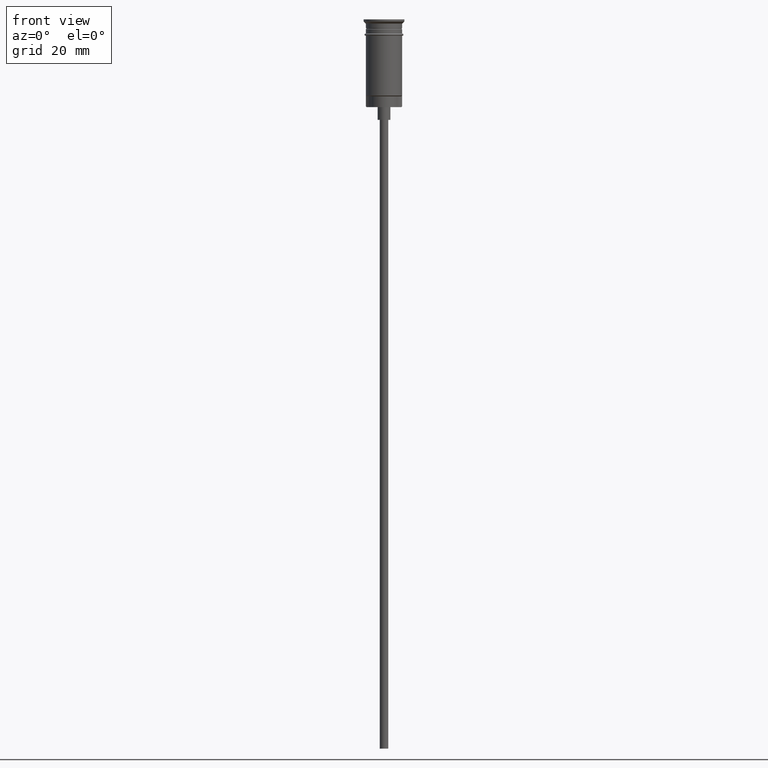
[diagram: clean part render]
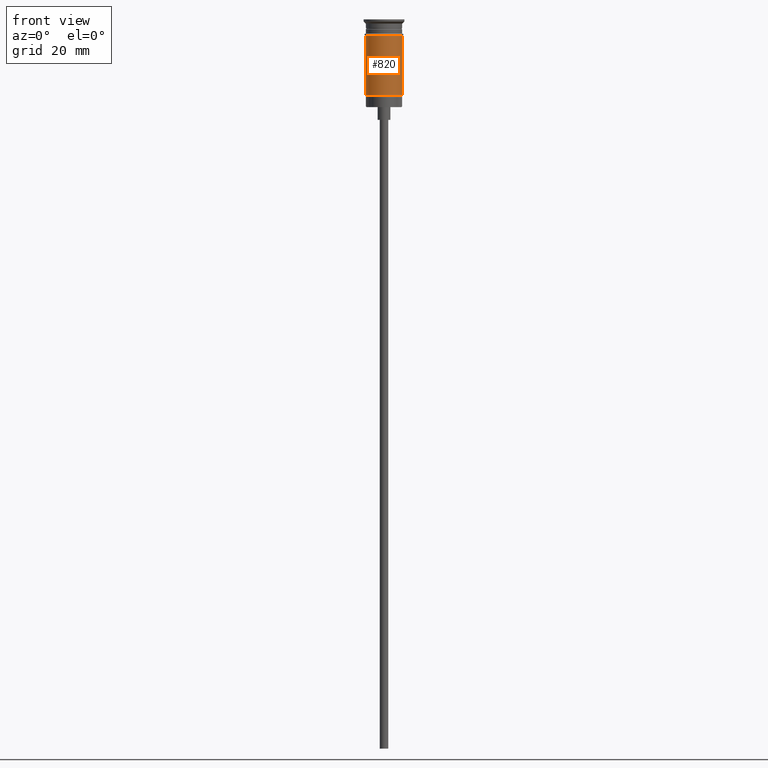
[diagram: same view with one face highlighted and labeled with its STEP entity id]
A machine part, front view. The second image highlights one B-rep face of the part: STEP entity #820.
In plain terms, the highlighted cylindrical surface (edge-blend (fillet) strip) has radius 4.25 mm, axis along (-0, -0, 1).
Its self-contained STEP definition (entity closure, byte-faithful):
#90 = AXIS2_PLACEMENT_3D ( 'NONE', #594, #586, #332 ) ;
#122 = ORIENTED_EDGE ( 'NONE', *, *, #1290, .T. ) ;
#182 = DIRECTION ( 'NONE',  ( 1.000000000000000000, 0.000000000000000000, 0.000000000000000000 ) ) ;
#193 = EDGE_CURVE ( 'NONE', #450, #294, #837, .T. ) ;
#200 = DIRECTION ( 'NONE',  ( -1.000000000000000000, 0.000000000000000000, 0.000000000000000000 ) ) ;
#238 = ORIENTED_EDGE ( 'NONE', *, *, #1216, .T. ) ;
#275 = VECTOR ( 'NONE', #791, 1000.000000000000000 ) ;
#290 = CARTESIAN_POINT ( 'NONE',  ( 4.249999999999996447, 0.000000000000000000, 0.000000000000000000 ) ) ;
#294 = VERTEX_POINT ( 'NONE', #860 ) ;
#306 = DIRECTION ( 'NONE',  ( -0.000000000000000000, -0.000000000000000000, 1.000000000000000000 ) ) ;
#332 = DIRECTION ( 'NONE',  ( 1.000000000000000000, 0.000000000000000000, 0.000000000000000000 ) ) ;
#450 = VERTEX_POINT ( 'NONE', #951 ) ;
#502 = CARTESIAN_POINT ( 'NONE',  ( 4.249999999999999112, 0.000000000000000000, -3.799999999999998934 ) ) ;
#536 = CIRCLE ( 'NONE', #561, 4.249999999999996447 ) ;
#561 = AXIS2_PLACEMENT_3D ( 'NONE', #1431, #944, #200 ) ;
#586 = DIRECTION ( 'NONE',  ( -0.000000000000000000, -0.000000000000000000, 1.000000000000000000 ) ) ;
#594 = CARTESIAN_POINT ( 'NONE',  ( 0.000000000000000000, 0.000000000000000000, 0.000000000000000000 ) ) ;
#727 = VERTEX_POINT ( 'NONE', #1392 ) ;
#791 = DIRECTION ( 'NONE',  ( -0.000000000000000000, -0.000000000000000000, 1.000000000000000000 ) ) ;
#820 = ADVANCED_FACE ( 'NONE', ( #1327 ), #1432, .T. ) ;
#837 = LINE ( 'NONE', #1190, #1070 ) ;
#860 = CARTESIAN_POINT ( 'NONE',  ( -4.249999999999999112, 5.204748896376250699E-16, -3.799999999999998934 ) ) ;
#880 = EDGE_LOOP ( 'NONE', ( #1497, #122, #238, #1111 ) ) ;
#913 = CARTESIAN_POINT ( 'NONE',  ( 0.000000000000000000, 0.000000000000000000, -3.799999999999998934 ) ) ;
#944 = DIRECTION ( 'NONE',  ( -0.000000000000000000, -0.000000000000000000, 1.000000000000000000 ) ) ;
#951 = CARTESIAN_POINT ( 'NONE',  ( -4.249999999999994671, 0.000000000000000000, -17.80000000000000071 ) ) ;
#1001 = VERTEX_POINT ( 'NONE', #502 ) ;
#1070 = VECTOR ( 'NONE', #1307, 1000.000000000000000 ) ;
#1111 = ORIENTED_EDGE ( 'NONE', *, *, #1149, .F. ) ;
#1149 = EDGE_CURVE ( 'NONE', #294, #1001, #1177, .T. ) ;
#1177 = CIRCLE ( 'NONE', #1305, 4.249999999999999112 ) ;
#1190 = CARTESIAN_POINT ( 'NONE',  ( -4.249999999999996447, 5.204748896376247741E-16, 0.000000000000000000 ) ) ;
#1216 = EDGE_CURVE ( 'NONE', #727, #1001, #1266, .T. ) ;
#1266 = LINE ( 'NONE', #290, #275 ) ;
#1290 = EDGE_CURVE ( 'NONE', #450, #727, #536, .T. ) ;
#1305 = AXIS2_PLACEMENT_3D ( 'NONE', #913, #306, #182 ) ;
#1307 = DIRECTION ( 'NONE',  ( -0.000000000000000000, -0.000000000000000000, 1.000000000000000000 ) ) ;
#1327 = FACE_OUTER_BOUND ( 'NONE', #880, .T. ) ;
#1392 = CARTESIAN_POINT ( 'NONE',  ( 4.249999999999996447, 5.204748896376247741E-16, -17.80000000000000071 ) ) ;
#1431 = CARTESIAN_POINT ( 'NONE',  ( 0.000000000000000000, 0.000000000000000000, -17.80000000000000071 ) ) ;
#1432 = CYLINDRICAL_SURFACE ( 'NONE', #90, 4.249999999999996447 ) ;
#1497 = ORIENTED_EDGE ( 'NONE', *, *, #193, .F. ) ;